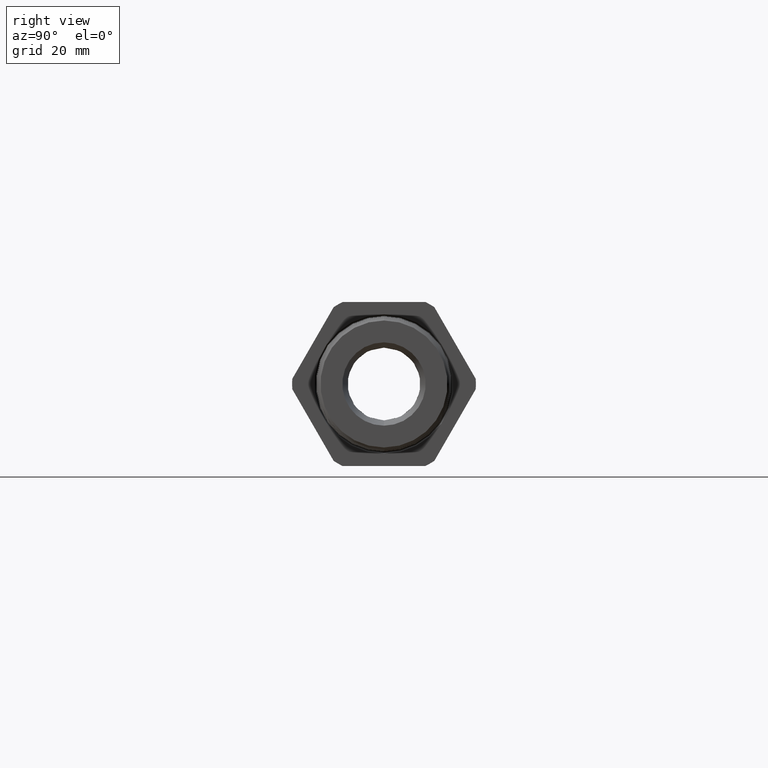
[diagram: clean part render]
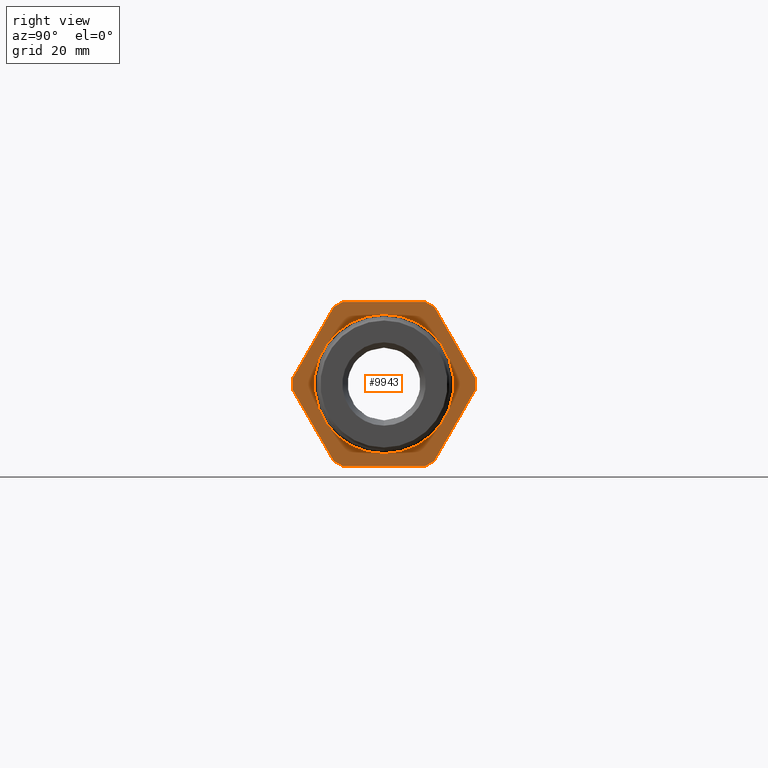
[diagram: same view with one face highlighted and labeled with its STEP entity id]
A machine part, right view. The second image highlights one B-rep face of the part: STEP entity #9943.
In plain terms, the highlighted planar face has unit normal (-1, 0, 0).
Its self-contained STEP definition (entity closure, byte-faithful):
#4090 = CARTESIAN_POINT ( 'NONE',  ( 0.0000000000000000000, 5.510910596163088300E-017, 0.4499999999999998400 ) ) ;
#4634 = CARTESIAN_POINT ( 'NONE',  ( 0.0000000000000000000, 0.0000000000000000000, -0.4499999999999998400 ) ) ;
#4673 = VECTOR ( 'NONE', #5244, 39.37007874015748100 ) ;
#4808 = DIRECTION ( 'NONE',  ( 0.0000000000000000000, 0.0000000000000000000, 1.000000000000000000 ) ) ;
#4809 = DIRECTION ( 'NONE',  ( 1.000000000000000000, 0.0000000000000000000, 0.0000000000000000000 ) ) ;
#4810 = CARTESIAN_POINT ( 'NONE',  ( 0.0000000000000000000, 0.0000000000000000000, 0.0000000000000000000 ) ) ;
#4811 = AXIS2_PLACEMENT_3D ( 'NONE', #4810, #4809, #4808 ) ;
#4816 = CIRCLE ( 'NONE', #4811, 0.4499999999999998400 ) ;
#5120 = DIRECTION ( 'NONE',  ( 0.0000000000000000000, -1.000000000000000000, 0.0000000000000000000 ) ) ;
#5121 = VECTOR ( 'NONE', #5120, 39.37007874015748100 ) ;
#5122 = CARTESIAN_POINT ( 'NONE',  ( 0.0000000000000000000, 0.2673218285138724300, 0.5299999999999999200 ) ) ;
#5123 = LINE ( 'NONE', #5122, #5121 ) ;
#5149 = DIRECTION ( 'NONE',  ( 0.0000000000000000000, 0.4999999999999998300, 0.8660254037844388200 ) ) ;
#5150 = VECTOR ( 'NONE', #5149, 39.37007874015748100 ) ;
#5151 = CARTESIAN_POINT ( 'NONE',  ( 0.0000000000000000000, 0.3253325497488160900, -0.4965074944791208500 ) ) ;
#5152 = LINE ( 'NONE', #5151, #5150 ) ;
#5153 = CARTESIAN_POINT ( 'NONE',  ( 0.0000000000000000000, 0.3253325497488160900, -0.4965074944791208500 ) ) ;
#5154 = DIRECTION ( 'NONE',  ( 0.0000000000000000000, 0.0000000000000000000, 1.000000000000000000 ) ) ;
#5155 = DIRECTION ( 'NONE',  ( -1.000000000000000000, 0.0000000000000000000, 0.0000000000000000000 ) ) ;
#5156 = CARTESIAN_POINT ( 'NONE',  ( 0.0000000000000000000, 0.0000000000000000000, 0.0000000000000000000 ) ) ;
#5157 = AXIS2_PLACEMENT_3D ( 'NONE', #5156, #5155, #5154 ) ;
#5158 = CIRCLE ( 'NONE', #5157, 0.5936000000000001300 ) ;
#5159 = DIRECTION ( 'NONE',  ( 0.0000000000000000000, 0.0000000000000000000, 1.000000000000000000 ) ) ;
#5160 = DIRECTION ( 'NONE',  ( 1.000000000000000000, 0.0000000000000000000, 0.0000000000000000000 ) ) ;
#5161 = CARTESIAN_POINT ( 'NONE',  ( 0.0000000000000000000, 0.0000000000000000000, 0.0000000000000000000 ) ) ;
#5162 = AXIS2_PLACEMENT_3D ( 'NONE', #5161, #5160, #5159 ) ;
#5163 = CIRCLE ( 'NONE', #5162, 0.4499999999999998400 ) ;
#5164 = DIRECTION ( 'NONE',  ( 0.0000000000000000000, 0.0000000000000000000, 1.000000000000000000 ) ) ;
#5165 = DIRECTION ( 'NONE',  ( -1.000000000000000000, 0.0000000000000000000, 0.0000000000000000000 ) ) ;
#5166 = CARTESIAN_POINT ( 'NONE',  ( 0.0000000000000000000, 0.0000000000000000000, 0.0000000000000000000 ) ) ;
#5167 = AXIS2_PLACEMENT_3D ( 'NONE', #5166, #5165, #5164 ) ;
#5168 = CIRCLE ( 'NONE', #5167, 0.5936000000000001300 ) ;
#5169 = CARTESIAN_POINT ( 'NONE',  ( 0.0000000000000000000, -0.5926543782626886300, 0.03349250552087959500 ) ) ;
#5170 = DIRECTION ( 'NONE',  ( 0.0000000000000000000, -0.5000000000000003300, -0.8660254037844383700 ) ) ;
#5171 = VECTOR ( 'NONE', #5170, 39.37007874015748100 ) ;
#5172 = CARTESIAN_POINT ( 'NONE',  ( 0.0000000000000000000, -0.3253325497488163700, 0.4965074944791205700 ) ) ;
#5173 = LINE ( 'NONE', #5172, #5171 ) ;
#5174 = CARTESIAN_POINT ( 'NONE',  ( 0.0000000000000000000, -0.3253325497488163700, 0.4965074944791205700 ) ) ;
#5175 = DIRECTION ( 'NONE',  ( 0.0000000000000000000, 0.0000000000000000000, 1.000000000000000000 ) ) ;
#5176 = DIRECTION ( 'NONE',  ( -1.000000000000000000, 0.0000000000000000000, 0.0000000000000000000 ) ) ;
#5177 = CARTESIAN_POINT ( 'NONE',  ( 0.0000000000000000000, 0.0000000000000000000, 0.0000000000000000000 ) ) ;
#5178 = AXIS2_PLACEMENT_3D ( 'NONE', #5177, #5176, #5175 ) ;
#5179 = CIRCLE ( 'NONE', #5178, 0.5936000000000001300 ) ;
#5180 = CARTESIAN_POINT ( 'NONE',  ( 0.0000000000000000000, -0.2673218285138724300, 0.5299999999999999200 ) ) ;
#5181 = CARTESIAN_POINT ( 'NONE',  ( 0.0000000000000000000, -0.5926543782626886300, -0.03349250552087959500 ) ) ;
#5182 = LINE ( 'NONE', #5181, #4673 ) ;
#5184 = DIRECTION ( 'NONE',  ( 0.0000000000000000000, 0.0000000000000000000, 1.000000000000000000 ) ) ;
#5185 = DIRECTION ( 'NONE',  ( -1.000000000000000000, 0.0000000000000000000, 0.0000000000000000000 ) ) ;
#5186 = CARTESIAN_POINT ( 'NONE',  ( 0.0000000000000000000, 0.5936000000000001300, 0.0000000000000000000 ) ) ;
#5187 = AXIS2_PLACEMENT_3D ( 'NONE', #5186, #5185, #5184 ) ;
#5188 = PLANE ( 'NONE',  #5187 ) ;
#5189 = FACE_BOUND ( 'NONE', #9924, .T. ) ;
#5190 = FACE_OUTER_BOUND ( 'NONE', #9944, .T. ) ;
#5195 = CARTESIAN_POINT ( 'NONE',  ( 0.0000000000000000000, 0.2673218285138722600, 0.5299999999999999200 ) ) ;
#5196 = DIRECTION ( 'NONE',  ( 0.0000000000000000000, 0.0000000000000000000, 1.000000000000000000 ) ) ;
#5197 = DIRECTION ( 'NONE',  ( -1.000000000000000000, 0.0000000000000000000, 0.0000000000000000000 ) ) ;
#5198 = CARTESIAN_POINT ( 'NONE',  ( 0.0000000000000000000, 0.0000000000000000000, 0.0000000000000000000 ) ) ;
#5199 = AXIS2_PLACEMENT_3D ( 'NONE', #5198, #5197, #5196 ) ;
#5200 = CIRCLE ( 'NONE', #5199, 0.5936000000000001300 ) ;
#5201 = CARTESIAN_POINT ( 'NONE',  ( 0.0000000000000000000, 0.3253325497488162000, 0.4965074944791207400 ) ) ;
#5202 = DIRECTION ( 'NONE',  ( 0.0000000000000000000, -0.5000000000000001100, 0.8660254037844386000 ) ) ;
#5203 = VECTOR ( 'NONE', #5202, 39.37007874015748100 ) ;
#5204 = CARTESIAN_POINT ( 'NONE',  ( 0.0000000000000000000, 0.5926543782626886300, 0.03349250552087932500 ) ) ;
#5205 = LINE ( 'NONE', #5204, #5203 ) ;
#5206 = CARTESIAN_POINT ( 'NONE',  ( 0.0000000000000000000, 0.5926543782626885200, 0.03349250552087933200 ) ) ;
#5207 = DIRECTION ( 'NONE',  ( 0.0000000000000000000, 0.0000000000000000000, 1.000000000000000000 ) ) ;
#5208 = DIRECTION ( 'NONE',  ( -1.000000000000000000, 0.0000000000000000000, 0.0000000000000000000 ) ) ;
#5209 = CARTESIAN_POINT ( 'NONE',  ( 0.0000000000000000000, 0.0000000000000000000, 0.0000000000000000000 ) ) ;
#5210 = AXIS2_PLACEMENT_3D ( 'NONE', #5209, #5208, #5207 ) ;
#5211 = CIRCLE ( 'NONE', #5210, 0.5936000000000001300 ) ;
#5212 = CARTESIAN_POINT ( 'NONE',  ( 0.0000000000000000000, 0.5926543782626886300, -0.03349250552087888000 ) ) ;
#5231 = CARTESIAN_POINT ( 'NONE',  ( 0.0000000000000000000, 0.2673218285138724300, -0.5299999999999999200 ) ) ;
#5232 = DIRECTION ( 'NONE',  ( 0.0000000000000000000, 1.000000000000000000, 0.0000000000000000000 ) ) ;
#5233 = VECTOR ( 'NONE', #5232, 39.37007874015748100 ) ;
#5234 = CARTESIAN_POINT ( 'NONE',  ( 0.0000000000000000000, -0.2673218285138724300, -0.5299999999999999200 ) ) ;
#5235 = LINE ( 'NONE', #5234, #5233 ) ;
#5236 = CARTESIAN_POINT ( 'NONE',  ( 0.0000000000000000000, -0.2673218285138723200, -0.5299999999999999200 ) ) ;
#5237 = DIRECTION ( 'NONE',  ( 0.0000000000000000000, 0.0000000000000000000, 1.000000000000000000 ) ) ;
#5238 = DIRECTION ( 'NONE',  ( -1.000000000000000000, 0.0000000000000000000, 0.0000000000000000000 ) ) ;
#5239 = CARTESIAN_POINT ( 'NONE',  ( 0.0000000000000000000, 0.0000000000000000000, 0.0000000000000000000 ) ) ;
#5240 = AXIS2_PLACEMENT_3D ( 'NONE', #5239, #5238, #5237 ) ;
#5241 = CIRCLE ( 'NONE', #5240, 0.5936000000000001300 ) ;
#5242 = CARTESIAN_POINT ( 'NONE',  ( 0.0000000000000000000, -0.3253325497488163700, -0.4965074944791205700 ) ) ;
#5243 = CARTESIAN_POINT ( 'NONE',  ( 0.0000000000000000000, -0.5926543782626886300, -0.03349250552087963000 ) ) ;
#5244 = DIRECTION ( 'NONE',  ( 0.0000000000000000000, 0.5000000000000003300, -0.8660254037844383700 ) ) ;
#9404 = VERTEX_POINT ( 'NONE', #4090 ) ;
#9693 = VERTEX_POINT ( 'NONE', #4634 ) ;
#9749 = EDGE_CURVE ( 'NONE', #9404, #9693, #4816, .T. ) ;
#9913 = ORIENTED_EDGE ( 'NONE', *, *, #9914, .T. ) ;
#9914 = EDGE_CURVE ( 'NONE', #9940, #9915, #5123, .T. ) ;
#9915 = VERTEX_POINT ( 'NONE', #5180 ) ;
#9916 = ORIENTED_EDGE ( 'NONE', *, *, #9917, .F. ) ;
#9917 = EDGE_CURVE ( 'NONE', #9918, #9915, #5179, .T. ) ;
#9918 = VERTEX_POINT ( 'NONE', #5174 ) ;
#9919 = ORIENTED_EDGE ( 'NONE', *, *, #9920, .T. ) ;
#9920 = EDGE_CURVE ( 'NONE', #9918, #9921, #5173, .T. ) ;
#9921 = VERTEX_POINT ( 'NONE', #5169 ) ;
#9922 = ORIENTED_EDGE ( 'NONE', *, *, #9923, .F. ) ;
#9923 = EDGE_CURVE ( 'NONE', #9947, #9921, #5168, .T. ) ;
#9924 = EDGE_LOOP ( 'NONE', ( #9925, #9982 ) ) ;
#9925 = ORIENTED_EDGE ( 'NONE', *, *, #9926, .F. ) ;
#9926 = EDGE_CURVE ( 'NONE', #9693, #9404, #5163, .T. ) ;
#9927 = EDGE_CURVE ( 'NONE', #9928, #9954, #5158, .T. ) ;
#9928 = VERTEX_POINT ( 'NONE', #5153 ) ;
#9929 = ORIENTED_EDGE ( 'NONE', *, *, #9930, .T. ) ;
#9930 = EDGE_CURVE ( 'NONE', #9928, #9931, #5152, .T. ) ;
#9931 = VERTEX_POINT ( 'NONE', #5212 ) ;
#9932 = ORIENTED_EDGE ( 'NONE', *, *, #9933, .F. ) ;
#9933 = EDGE_CURVE ( 'NONE', #9934, #9931, #5211, .T. ) ;
#9934 = VERTEX_POINT ( 'NONE', #5206 ) ;
#9935 = ORIENTED_EDGE ( 'NONE', *, *, #9936, .T. ) ;
#9936 = EDGE_CURVE ( 'NONE', #9934, #9937, #5205, .T. ) ;
#9937 = VERTEX_POINT ( 'NONE', #5201 ) ;
#9938 = ORIENTED_EDGE ( 'NONE', *, *, #9939, .F. ) ;
#9939 = EDGE_CURVE ( 'NONE', #9940, #9937, #5200, .T. ) ;
#9940 = VERTEX_POINT ( 'NONE', #5195 ) ;
#9943 = ADVANCED_FACE ( 'NONE', ( #5190, #5189 ), #5188, .F. ) ;
#9944 = EDGE_LOOP ( 'NONE', ( #9945, #9949, #9952, #9955, #9929, #9932, #9935, #9938, #9913, #9916, #9919, #9922 ) ) ;
#9945 = ORIENTED_EDGE ( 'NONE', *, *, #9946, .T. ) ;
#9946 = EDGE_CURVE ( 'NONE', #9947, #9948, #5182, .T. ) ;
#9947 = VERTEX_POINT ( 'NONE', #5243 ) ;
#9948 = VERTEX_POINT ( 'NONE', #5242 ) ;
#9949 = ORIENTED_EDGE ( 'NONE', *, *, #9950, .F. ) ;
#9950 = EDGE_CURVE ( 'NONE', #9951, #9948, #5241, .T. ) ;
#9951 = VERTEX_POINT ( 'NONE', #5236 ) ;
#9952 = ORIENTED_EDGE ( 'NONE', *, *, #9953, .T. ) ;
#9953 = EDGE_CURVE ( 'NONE', #9951, #9954, #5235, .T. ) ;
#9954 = VERTEX_POINT ( 'NONE', #5231 ) ;
#9955 = ORIENTED_EDGE ( 'NONE', *, *, #9927, .F. ) ;
#9982 = ORIENTED_EDGE ( 'NONE', *, *, #9749, .F. ) ;